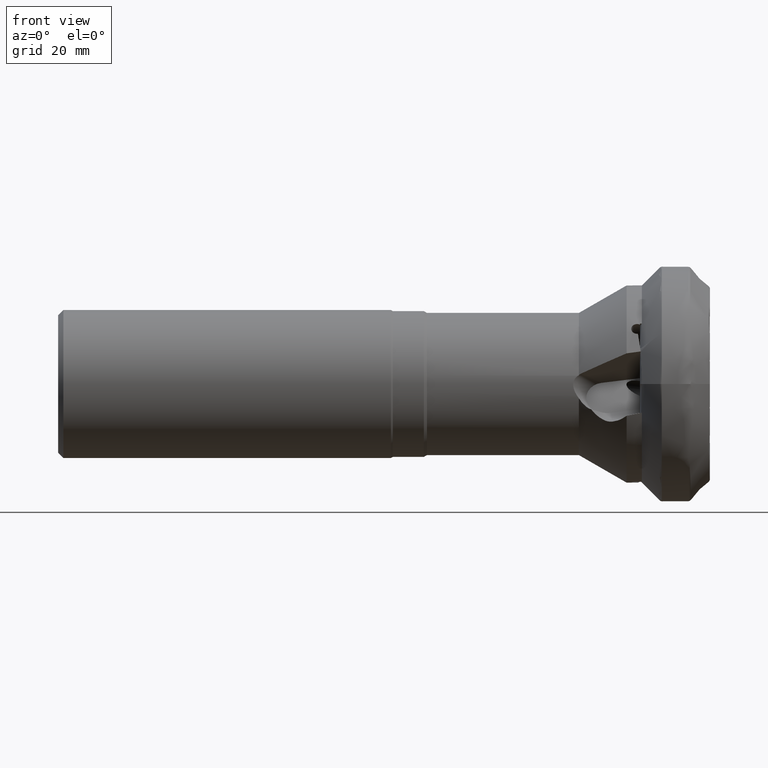
[diagram: clean part render]
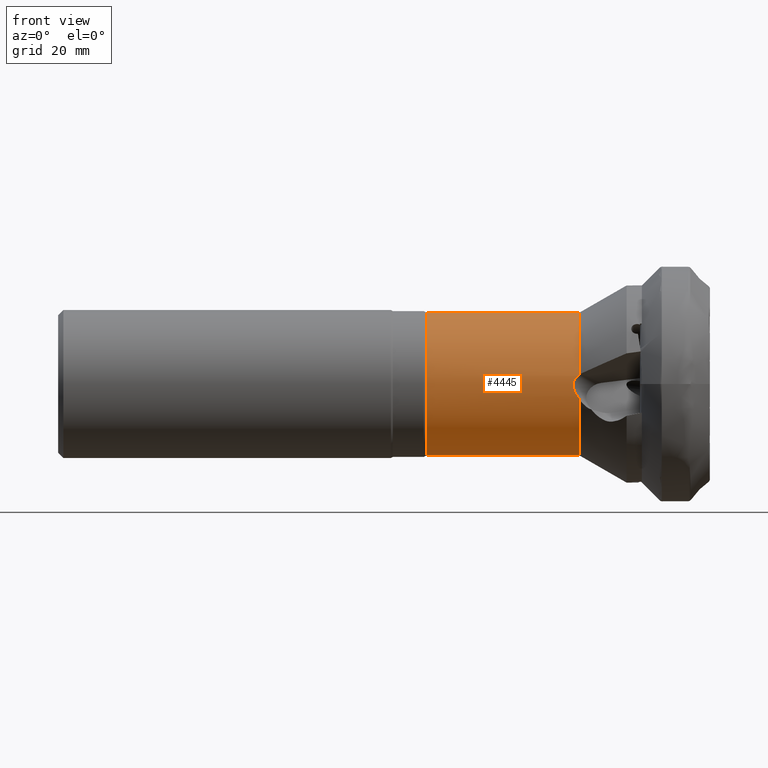
[diagram: same view with one face highlighted and labeled with its STEP entity id]
A machine part, front view. The second image highlights one B-rep face of the part: STEP entity #4445.
In plain terms, the highlighted cylindrical surface (partial cylindrical patch) has radius 12 mm, axis along (1, -0, -0).
Its self-contained STEP definition (entity closure, byte-faithful):
#18 = CARTESIAN_POINT ( 'NONE',  ( -21.91621521771393700, -11.93077340290496500, -1.298169325315307900 ) ) ;
#26 = ORIENTED_EDGE ( 'NONE', *, *, #6795, .F. ) ;
#140 = VECTOR ( 'NONE', #6852, 1000.000000000000000 ) ;
#503 = CARTESIAN_POINT ( 'NONE',  ( 0.0000000000000000000, 1.469576158976823400E-015, 11.99999999999999500 ) ) ;
#513 = DIRECTION ( 'NONE',  ( 1.000000000000000000, -0.0000000000000000000, -0.0000000000000000000 ) ) ;
#526 = DIRECTION ( 'NONE',  ( 0.0000000000000000000, 0.0000000000000000000, -1.000000000000000000 ) ) ;
#562 = CARTESIAN_POINT ( 'NONE',  ( -21.46056899569149200, -11.81607833850798200, -2.114109306787117900 ) ) ;
#957 = CARTESIAN_POINT ( 'NONE',  ( -21.22999999999233000, -11.90783212673240000, 1.484430544538777300 ) ) ;
#1030 = AXIS2_PLACEMENT_3D ( 'NONE', #3709, #513, #4226 ) ;
#1094 = CARTESIAN_POINT ( 'NONE',  ( -21.81983903797858200, -11.95684528710080300, 1.025511829404302200 ) ) ;
#1279 = VERTEX_POINT ( 'NONE', #957 ) ;
#1509 = CYLINDRICAL_SURFACE ( 'NONE', #2684, 11.99999999999999500 ) ;
#1575 = LINE ( 'NONE', #503, #140 ) ;
#1594 = CARTESIAN_POINT ( 'NONE',  ( -46.88038475772931700, 0.0000000000000000000, 0.0000000000000000000 ) ) ;
#1621 = CARTESIAN_POINT ( 'NONE',  ( -22.09280481892621100, -11.98933157921766800, 0.5336924059638616900 ) ) ;
#1738 = CIRCLE ( 'NONE', #2429, 11.99999999999999500 ) ;
#1761 = DIRECTION ( 'NONE',  ( 1.000000000000000000, -0.0000000000000000000, -0.0000000000000000000 ) ) ;
#1788 = CIRCLE ( 'NONE', #6900, 11.99999999999999500 ) ;
#1853 = VERTEX_POINT ( 'NONE', #1919 ) ;
#1919 = CARTESIAN_POINT ( 'NONE',  ( -46.88038475772931700, 1.469576158976823400E-015, 11.99999999999999500 ) ) ;
#2124 = DIRECTION ( 'NONE',  ( 0.0000000000000000000, 0.0000000000000000000, -1.000000000000000000 ) ) ;
#2149 = CARTESIAN_POINT ( 'NONE',  ( -22.19494018915692700, -12.00143887460997600, -0.02262240768056683300 ) ) ;
#2297 = VERTEX_POINT ( 'NONE', #6363 ) ;
#2316 = VERTEX_POINT ( 'NONE', #4370 ) ;
#2429 = AXIS2_PLACEMENT_3D ( 'NONE', #6898, #3722, #526 ) ;
#2665 = CARTESIAN_POINT ( 'NONE',  ( -21.22999999999233000, -11.90783212673240000, 1.484430544538777300 ) ) ;
#2684 = AXIS2_PLACEMENT_3D ( 'NONE', #4043, #6182, #6719 ) ;
#2687 = CARTESIAN_POINT ( 'NONE',  ( -22.14766664206071000, -11.98730539208515800, -0.5822386225387237200 ) ) ;
#2815 = CARTESIAN_POINT ( 'NONE',  ( -21.22999999999233000, -11.75619173056652000, -2.406648290498488900 ) ) ;
#2975 = EDGE_CURVE ( 'NONE', #2297, #1279, #3208, .T. ) ;
#3000 = EDGE_CURVE ( 'NONE', #1853, #5379, #1788, .T. ) ;
#3142 = CARTESIAN_POINT ( 'NONE',  ( -46.88038475772931700, 0.0000000000000000000, -11.99999999999999500 ) ) ;
#3144 = B_SPLINE_CURVE_WITH_KNOTS ( 'NONE', 3,
 ( #2665, #5848, #4252, #1094, #4799, #1621, #5331, #2149, #5873, #2687, #6420, #3226, #18, #3755, #562, #4276 ),
 .UNSPECIFIED., .F., .F.,
 ( 4, 2, 2, 2, 2, 2, 2, 4 ),
 ( 0.0000000000000000000, 0.0005614188587662388400, 0.001122837717532477700, 0.001684256576298716500, 0.002245675435064955300, 0.002807094293831194200, 0.003368513152597433000, 0.004491350870129910700 ),
 .UNSPECIFIED. ) ;
#3171 = LINE ( 'NONE', #4391, #4386 ) ;
#3208 = CIRCLE ( 'NONE', #1030, 11.99999999999999500 ) ;
#3226 = CARTESIAN_POINT ( 'NONE',  ( -21.98886194960652700, -11.94856764089503200, -1.124191281152078000 ) ) ;
#3709 = CARTESIAN_POINT ( 'NONE',  ( -21.23000000000001100, 0.0000000000000000000, 0.0000000000000000000 ) ) ;
#3722 = DIRECTION ( 'NONE',  ( 1.000000000000000000, -0.0000000000000000000, -0.0000000000000000000 ) ) ;
#3755 = CARTESIAN_POINT ( 'NONE',  ( -21.66727695871126300, -11.86879478377967300, -1.801693851666818200 ) ) ;
#3976 = EDGE_CURVE ( 'NONE', #1279, #4183, #3144, .T. ) ;
#4043 = CARTESIAN_POINT ( 'NONE',  ( 0.0000000000000000000, 0.0000000000000000000, 0.0000000000000000000 ) ) ;
#4183 = VERTEX_POINT ( 'NONE', #2815 ) ;
#4226 = DIRECTION ( 'NONE',  ( 0.0000000000000000000, 0.0000000000000000000, -1.000000000000000000 ) ) ;
#4252 = CARTESIAN_POINT ( 'NONE',  ( -21.55143678194056600, -11.93106995168588600, 1.291275934837693400 ) ) ;
#4276 = CARTESIAN_POINT ( 'NONE',  ( -21.22999999999233000, -11.75619173056652000, -2.406648290498488900 ) ) ;
#4370 = CARTESIAN_POINT ( 'NONE',  ( -21.23000000000001100, 0.0000000000000000000, -11.99999999999999600 ) ) ;
#4386 = VECTOR ( 'NONE', #1761, 1000.000000000000000 ) ;
#4391 = CARTESIAN_POINT ( 'NONE',  ( 0.0000000000000000000, 0.0000000000000000000, -11.99999999999999500 ) ) ;
#4445 = ADVANCED_FACE ( 'NONE', ( #5748 ), #1509, .T. ) ;
#4799 = CARTESIAN_POINT ( 'NONE',  ( -21.92889608105755500, -11.96940220895098200, 0.8731036942820220600 ) ) ;
#5047 = EDGE_CURVE ( 'NONE', #4183, #2316, #1738, .T. ) ;
#5155 = EDGE_CURVE ( 'NONE', #5379, #2316, #3171, .T. ) ;
#5302 = DIRECTION ( 'NONE',  ( 1.000000000000000000, -0.0000000000000000000, -0.0000000000000000000 ) ) ;
#5331 = CARTESIAN_POINT ( 'NONE',  ( -22.14489805781517300, -11.99630413413689000, 0.3517583767574423100 ) ) ;
#5379 = VERTEX_POINT ( 'NONE', #3142 ) ;
#5527 = ORIENTED_EDGE ( 'NONE', *, *, #5047, .F. ) ;
#5614 = ORIENTED_EDGE ( 'NONE', *, *, #3976, .F. ) ;
#5748 = FACE_OUTER_BOUND ( 'NONE', #6039, .T. ) ;
#5848 = CARTESIAN_POINT ( 'NONE',  ( -21.39870938455131700, -11.91851520469303700, 1.398732834113698000 ) ) ;
#5873 = CARTESIAN_POINT ( 'NONE',  ( -22.19269486914594200, -11.99958214936129700, -0.2109990934090452100 ) ) ;
#6031 = ORIENTED_EDGE ( 'NONE', *, *, #2975, .F. ) ;
#6039 = EDGE_LOOP ( 'NONE', ( #26, #6154, #6380, #5527, #5614, #6031 ) ) ;
#6154 = ORIENTED_EDGE ( 'NONE', *, *, #3000, .T. ) ;
#6182 = DIRECTION ( 'NONE',  ( 1.000000000000000000, -0.0000000000000000000, -0.0000000000000000000 ) ) ;
#6363 = CARTESIAN_POINT ( 'NONE',  ( -21.23000000000001100, 1.469576158976823400E-015, 11.99999999999999500 ) ) ;
#6380 = ORIENTED_EDGE ( 'NONE', *, *, #5155, .T. ) ;
#6420 = CARTESIAN_POINT ( 'NONE',  ( -22.10439581441147900, -11.97679449052671100, -0.7671169645831291700 ) ) ;
#6719 = DIRECTION ( 'NONE',  ( 0.0000000000000000000, 0.0000000000000000000, -1.000000000000000000 ) ) ;
#6795 = EDGE_CURVE ( 'NONE', #1853, #2297, #1575, .T. ) ;
#6852 = DIRECTION ( 'NONE',  ( 1.000000000000000000, -0.0000000000000000000, -0.0000000000000000000 ) ) ;
#6898 = CARTESIAN_POINT ( 'NONE',  ( -21.23000000000001100, 0.0000000000000000000, 0.0000000000000000000 ) ) ;
#6900 = AXIS2_PLACEMENT_3D ( 'NONE', #1594, #5302, #2124 ) ;